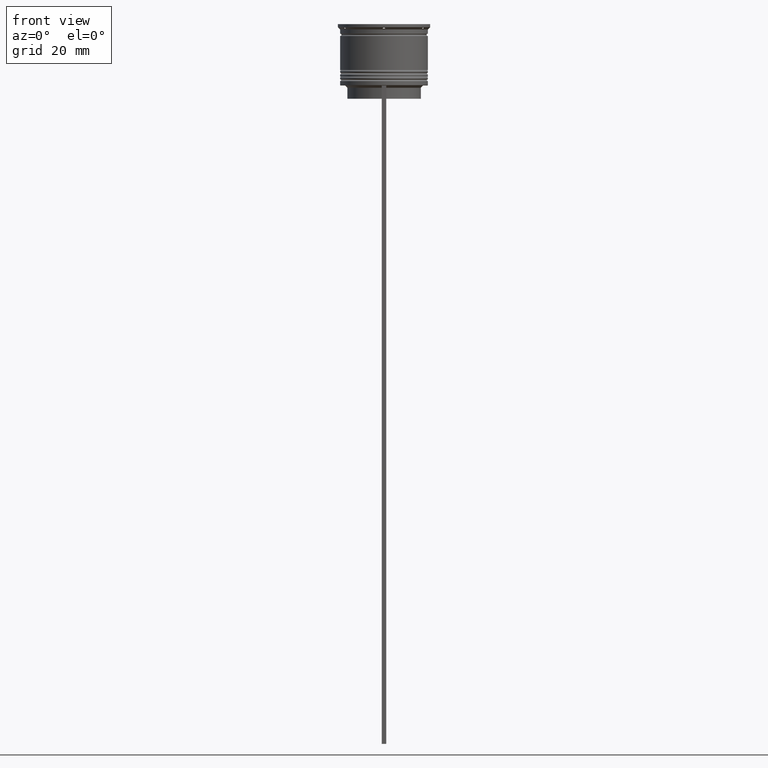
[diagram: clean part render]
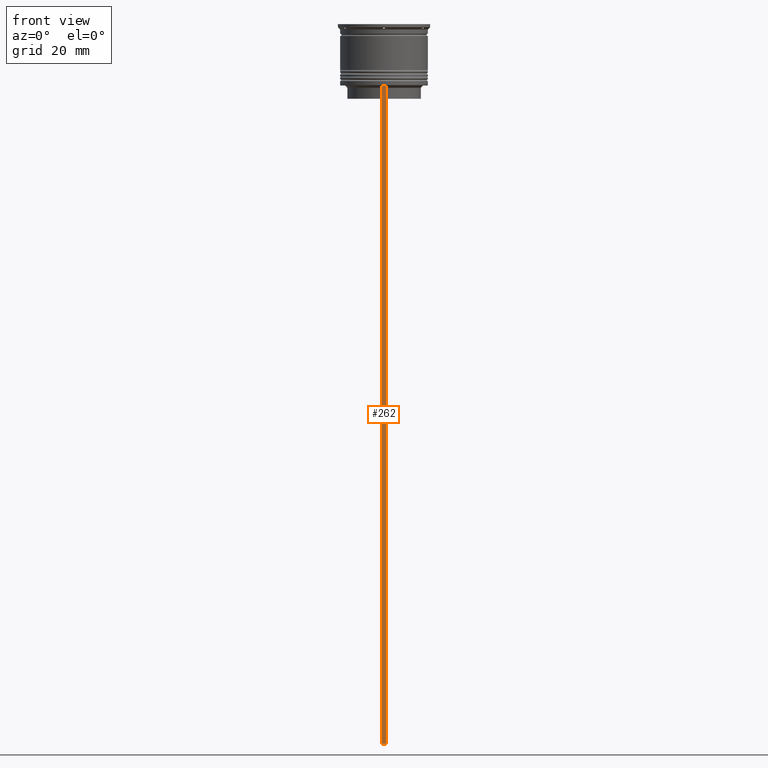
[diagram: same view with one face highlighted and labeled with its STEP entity id]
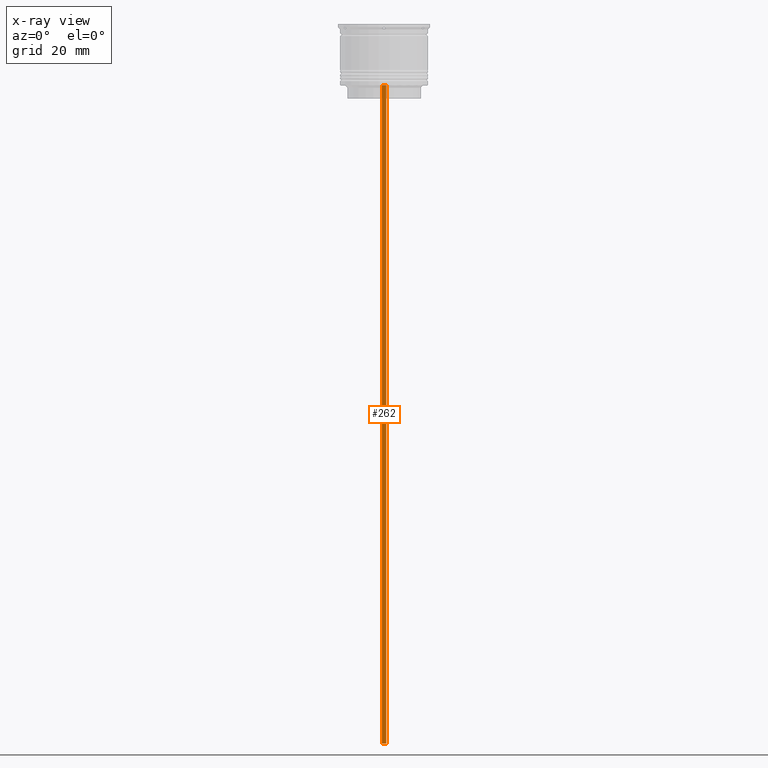
[diagram: x-ray of the same camera — body ghosted, the highlighted face saturated]
A machine part, front view. The second image highlights one B-rep face of the part: STEP entity #262.
The next image is the same camera in x-ray: the body ghosted, the highlighted face saturated — about 0% of this face is hidden behind the body in this view.
In plain terms, the highlighted planar face has unit normal (0, -1, -0).
Its self-contained STEP definition (entity closure, byte-faithful):
#48 = DIRECTION ( 'NONE',  ( -1.000000000000000000, 0.000000000000000000, 0.000000000000000000 ) ) ;
#176 = EDGE_CURVE ( 'NONE', #2055, #364, #659, .T. ) ;
#262 = ADVANCED_FACE ( 'NONE', ( #2165 ), #1167, .T. ) ;
#364 = VERTEX_POINT ( 'NONE', #1789 ) ;
#471 = ORIENTED_EDGE ( 'NONE', *, *, #1861, .T. ) ;
#482 = DIRECTION ( 'NONE',  ( 0.000000000000000000, 0.000000000000000000, -1.000000000000000000 ) ) ;
#532 = VERTEX_POINT ( 'NONE', #1842 ) ;
#624 = AXIS2_PLACEMENT_3D ( 'NONE', #964, #2393, #1555 ) ;
#659 = LINE ( 'NONE', #2309, #753 ) ;
#661 = ORIENTED_EDGE ( 'NONE', *, *, #1052, .F. ) ;
#667 = VECTOR ( 'NONE', #48, 1000.000000000000000 ) ;
#744 = EDGE_CURVE ( 'NONE', #364, #532, #1723, .T. ) ;
#753 = VECTOR ( 'NONE', #1701, 1000.000000000000000 ) ;
#783 = VECTOR ( 'NONE', #1957, 1000.000000000000000 ) ;
#964 = CARTESIAN_POINT ( 'NONE',  ( 0.5000000000000000000, -10.00000000000000178, 6.024984394500783047 ) ) ;
#993 = CARTESIAN_POINT ( 'NONE',  ( -0.5000000000000000000, -10.00000000000000178, -14.00000000000000178 ) ) ;
#1052 = EDGE_CURVE ( 'NONE', #532, #2457, #1487, .T. ) ;
#1167 = PLANE ( 'NONE',  #624 ) ;
#1251 = ORIENTED_EDGE ( 'NONE', *, *, #176, .F. ) ;
#1293 = CARTESIAN_POINT ( 'NONE',  ( 0.5000000000000000000, -10.00000000000000178, -163.9999999999999716 ) ) ;
#1319 = CARTESIAN_POINT ( 'NONE',  ( 0.5000000000000000000, -10.00000000000000178, 6.024984394500783047 ) ) ;
#1419 = ORIENTED_EDGE ( 'NONE', *, *, #744, .F. ) ;
#1475 = EDGE_LOOP ( 'NONE', ( #1251, #471, #661, #1419 ) ) ;
#1487 = LINE ( 'NONE', #1293, #667 ) ;
#1555 = DIRECTION ( 'NONE',  ( 0.000000000000000000, 0.000000000000000000, -1.000000000000000000 ) ) ;
#1701 = DIRECTION ( 'NONE',  ( 1.000000000000000000, 0.000000000000000000, 0.000000000000000000 ) ) ;
#1723 = LINE ( 'NONE', #1319, #2094 ) ;
#1789 = CARTESIAN_POINT ( 'NONE',  ( 0.5000000000000000000, -10.00000000000000178, -14.00000000000000178 ) ) ;
#1842 = CARTESIAN_POINT ( 'NONE',  ( 0.5000000000000000000, -10.00000000000000178, -163.9999999999999716 ) ) ;
#1861 = EDGE_CURVE ( 'NONE', #2055, #2457, #2374, .T. ) ;
#1957 = DIRECTION ( 'NONE',  ( 0.000000000000000000, 0.000000000000000000, -1.000000000000000000 ) ) ;
#2055 = VERTEX_POINT ( 'NONE', #993 ) ;
#2094 = VECTOR ( 'NONE', #482, 1000.000000000000000 ) ;
#2165 = FACE_OUTER_BOUND ( 'NONE', #1475, .T. ) ;
#2309 = CARTESIAN_POINT ( 'NONE',  ( 0.5000000000000000000, -10.00000000000000178, -14.00000000000000178 ) ) ;
#2374 = LINE ( 'NONE', #2542, #783 ) ;
#2393 = DIRECTION ( 'NONE',  ( 0.000000000000000000, -1.000000000000000000, -0.000000000000000000 ) ) ;
#2457 = VERTEX_POINT ( 'NONE', #2516 ) ;
#2516 = CARTESIAN_POINT ( 'NONE',  ( -0.5000000000000000000, -10.00000000000000178, -163.9999999999999716 ) ) ;
#2542 = CARTESIAN_POINT ( 'NONE',  ( -0.5000000000000000000, -10.00000000000000178, 6.024984394500783047 ) ) ;